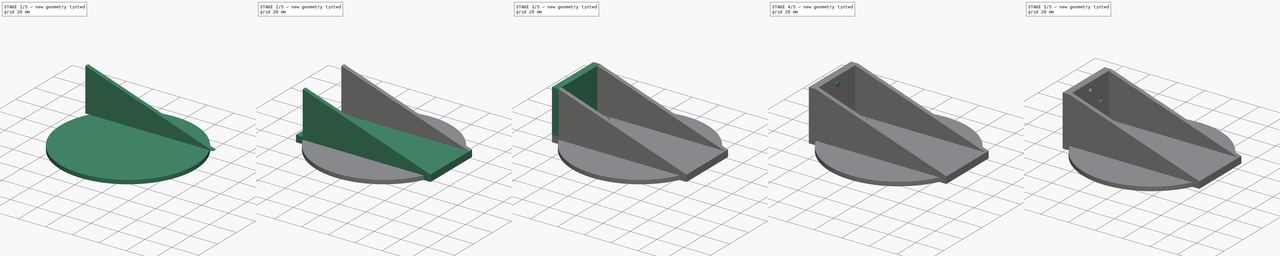
[diagram: build sequence overview — one tinted view per stage of 5, left to right]
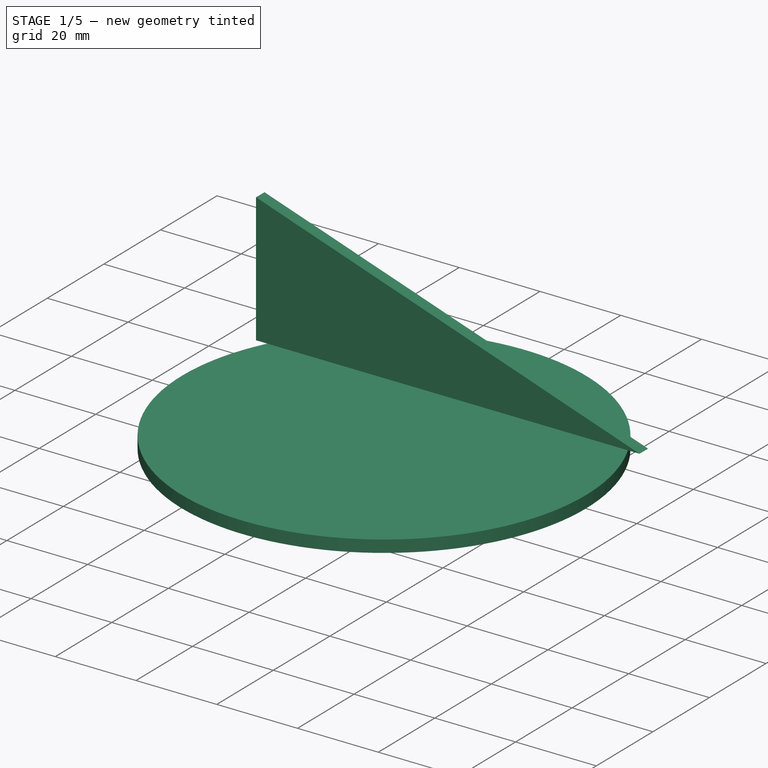
[diagram: stage 1 of 5 — iso view after this stage's code; geometry added in this stage tinted green]
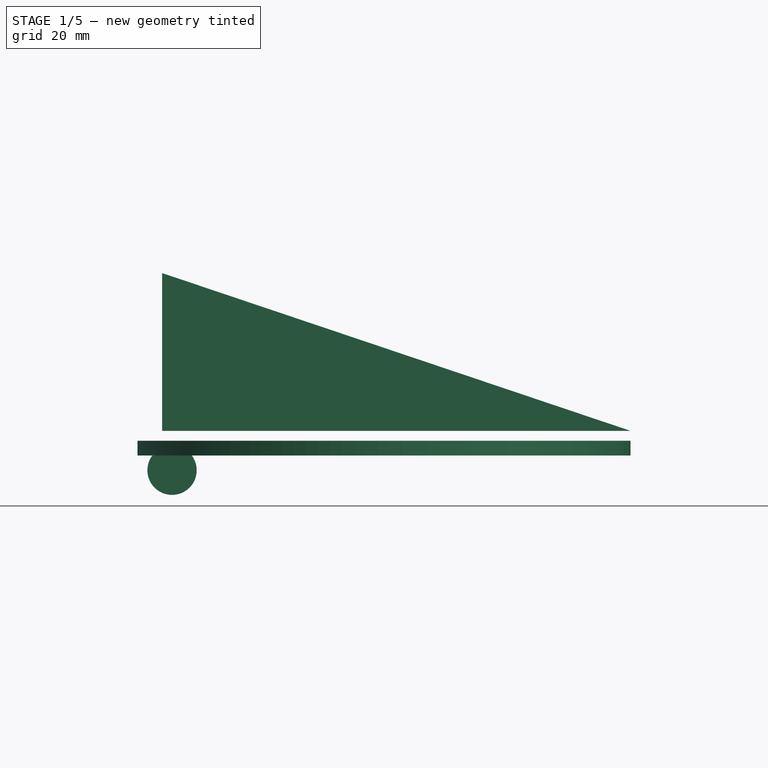
[diagram: stage 1 of 5 — front view after this stage's code; geometry added in this stage tinted green]
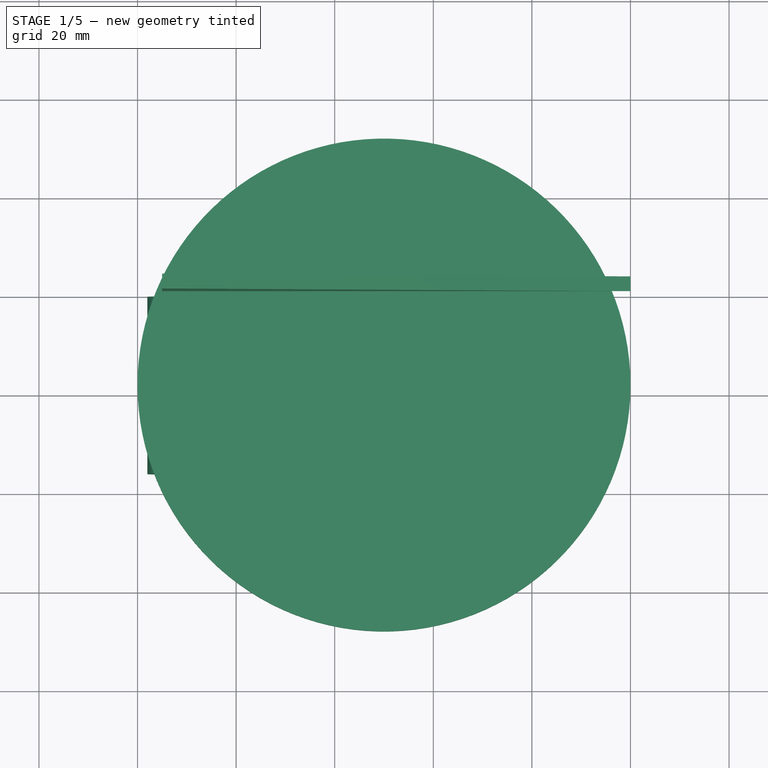
[diagram: stage 1 of 5 — top view after this stage's code; geometry added in this stage tinted green]
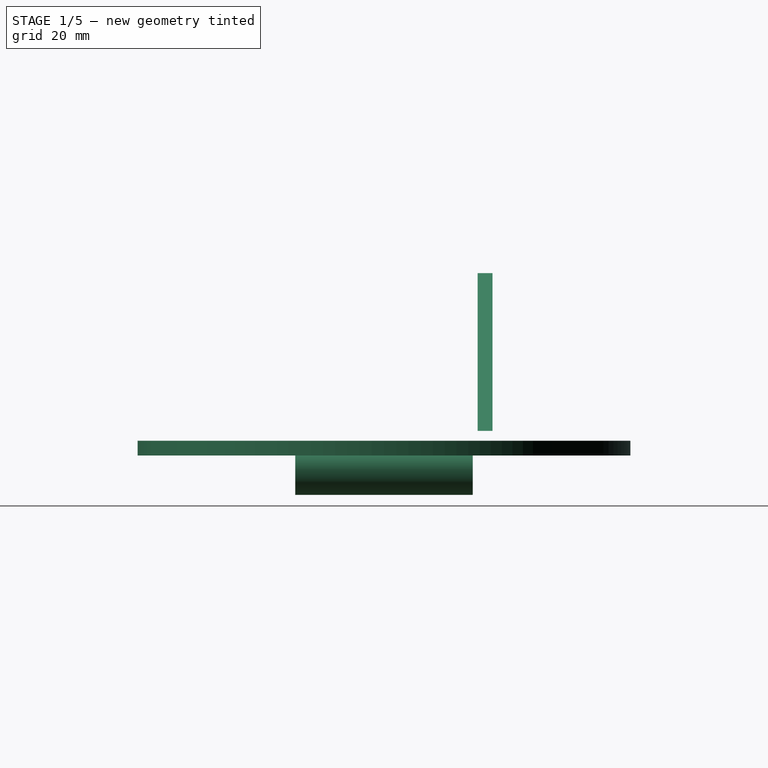
[diagram: stage 1 of 5 — right view after this stage's code; geometry added in this stage tinted green]
FCSTD DOCUMENT  (FreeCAD 0.15R4671 (Git))
Label: table_mount_top
License: All rights reserved
LicenseURL: http://en.wikipedia.org/wiki/All_rights_reserved
objects: Part::Cylinder×8, Part::Box×3, Part::MultiFuse×3, Sketcher::SketchObject×2, Part::Extrusion×2, Part::Cut×2
note: 20 computed .brp shape members not serialized (recipe doc carries the construction recipe); baked Part::Feature solids carry a one-line shape summary decoded from their .brp

FEATURE [Part::Box] Box002  label="Cube002"
  Height = 32
  Length = 5
  Placement = pos=(0,0,5) rot=(0,0,1;0rad)
  Width = 44
FEATURE [Sketcher::SketchObject] Sketch001
  ExternalGeometry = -> [Box002]
  Placement = pos=(0,0,5) rot=(1,0,0;1.5708rad)
  Support = -> Box002 [Face3]
  sketch-geometry (4):
    g0: GeomPoint [constr] X=100 Y=0 Z=0
    g1: LineSegment StartX=5 StartY=0 StartZ=0 EndX=5 EndY=32 EndZ=0
    g2: LineSegment StartX=5 StartY=32 StartZ=0 EndX=100 EndY=0 EndZ=0
    g3: LineSegment StartX=100 StartY=0 StartZ=0 EndX=5 EndY=0 EndZ=0
  constraints (8):
    c: DistanceX(g0) = 100
    c: DistanceY(g0) = 0
    c: Coincident(g1,g-4)
    c: Coincident(g1,g-3)
    c: Coincident(g2,g1)
    c: Coincident(g2,g0)
    c: Coincident(g3,g0)
    c: Coincident(g3,g1)
FEATURE [Part::Extrusion] Extrude001
  Base = -> Sketch001
  Dir = (0,3,0)
  Placement = pos=(0,41,0) rot=(0,0,1;0rad)
  Solid = true
FEATURE [Part::Cylinder] Cylinder008
  Angle = 360
  Height = 3
  Placement = pos=(50,22,0) rot=(0,0,1;0rad)
  Radius = 50
FEATURE [Part::Cylinder] Cylinder009
  Angle = 360
  Height = 36
  Placement = pos=(7,40,-3) rot=(1,0,0;1.5708rad)
  Radius = 5
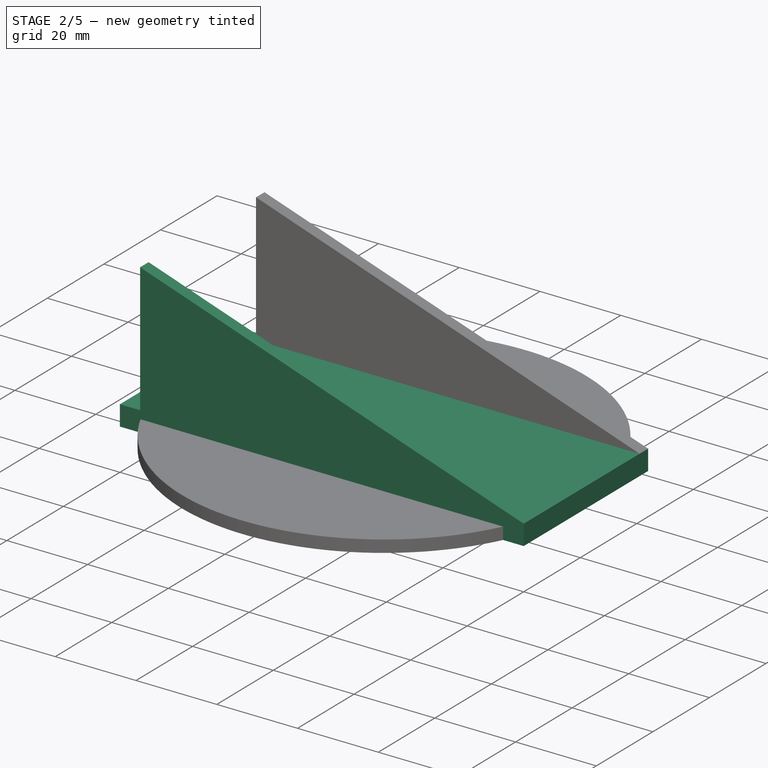
[diagram: stage 2 of 5 — iso view after this stage's code; geometry added in this stage tinted green]
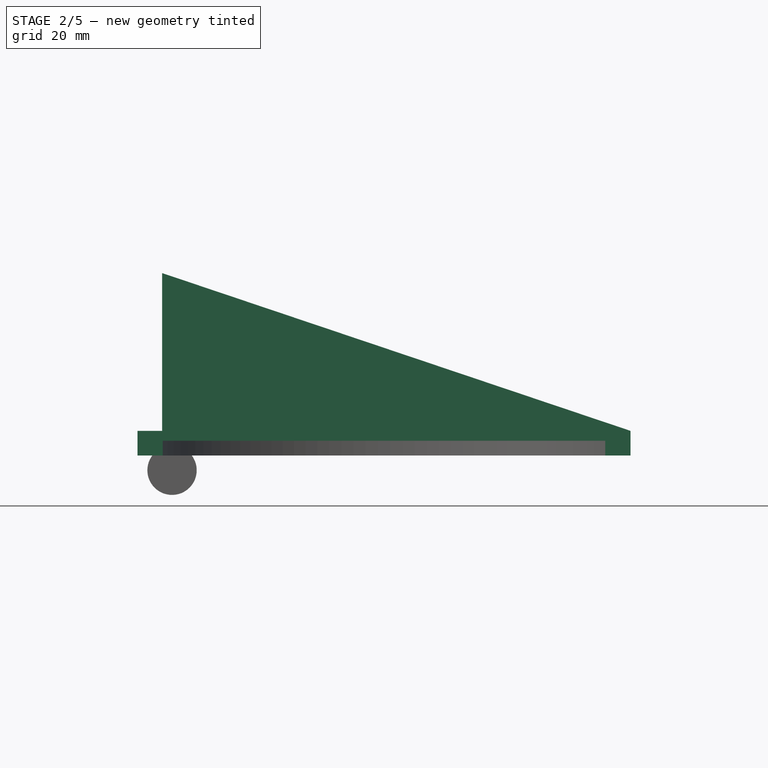
[diagram: stage 2 of 5 — front view after this stage's code; geometry added in this stage tinted green]
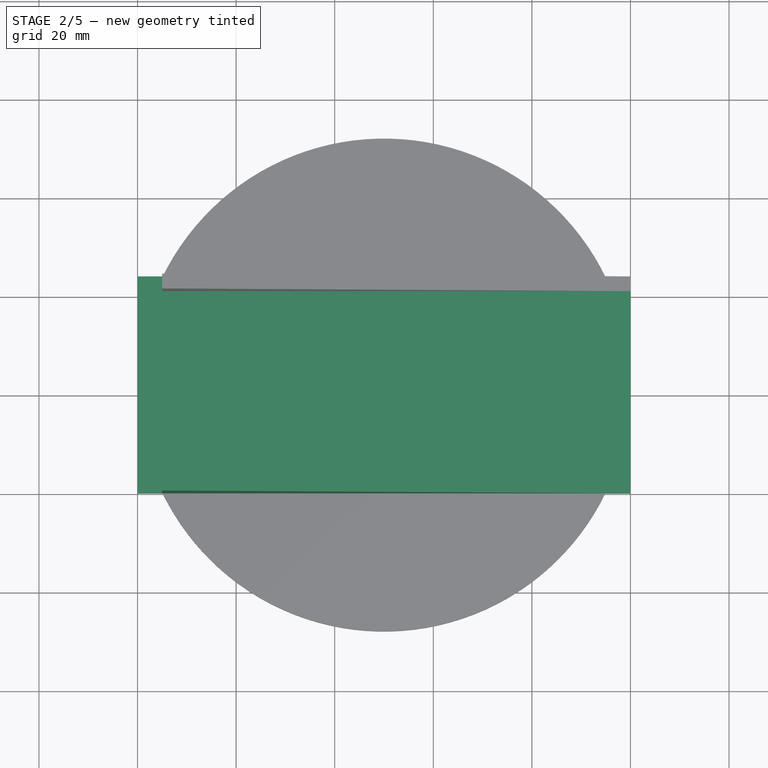
[diagram: stage 2 of 5 — top view after this stage's code; geometry added in this stage tinted green]
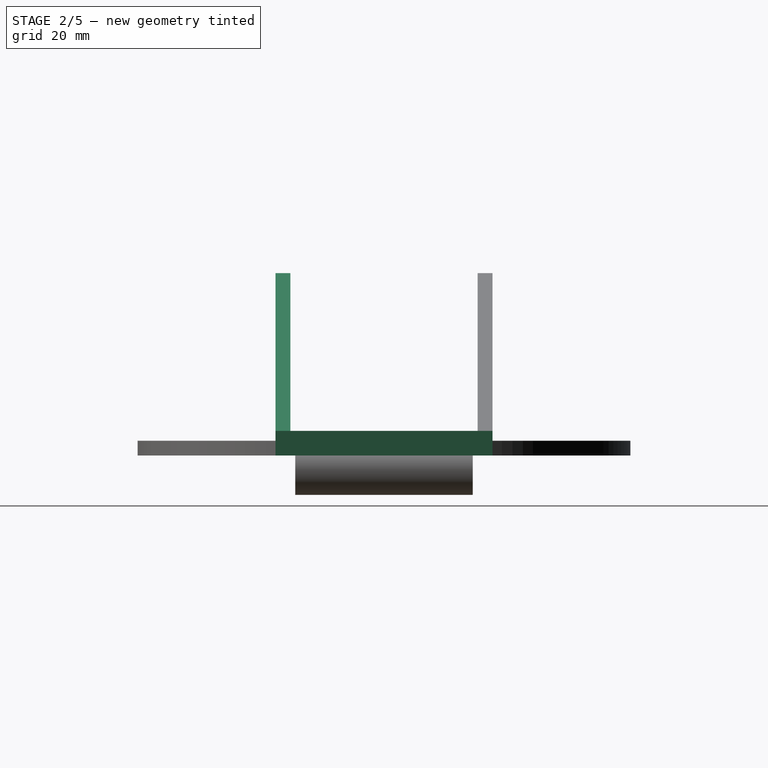
[diagram: stage 2 of 5 — right view after this stage's code; geometry added in this stage tinted green]
FEATURE [Part::Box] Box  label="Cube"
  Height = 32
  Length = 5
  Placement = pos=(0,0,5) rot=(0,0,1;0rad)
  Width = 44
FEATURE [Part::Box] Box001  label="Cube001"
  Height = 5
  Length = 100
  Width = 44
FEATURE [Sketcher::SketchObject] Sketch
  ExternalGeometry = -> [Box]
  Placement = pos=(0,0,5) rot=(1,0,0;1.5708rad)
  Support = -> Box [Face3]
  sketch-geometry (4):
    g0: GeomPoint [constr] X=100 Y=0 Z=0
    g1: LineSegment StartX=5 StartY=0 StartZ=0 EndX=5 EndY=32 EndZ=0
    g2: LineSegment StartX=5 StartY=32 StartZ=0 EndX=100 EndY=0 EndZ=0
    g3: LineSegment StartX=100 StartY=0 StartZ=0 EndX=5 EndY=0 EndZ=0
  constraints (8):
    c: DistanceX(g0) = 100
    c: DistanceY(g0) = 0
    c: Coincident(g1,g-4)
    c: Coincident(g1,g-3)
    c: Coincident(g2,g1)
    c: Coincident(g2,g0)
    c: Coincident(g3,g0)
    c: Coincident(g3,g1)
FEATURE [Part::Extrusion] Extrude
  Base = -> Sketch
  Dir = (0,3,0)
  Solid = true
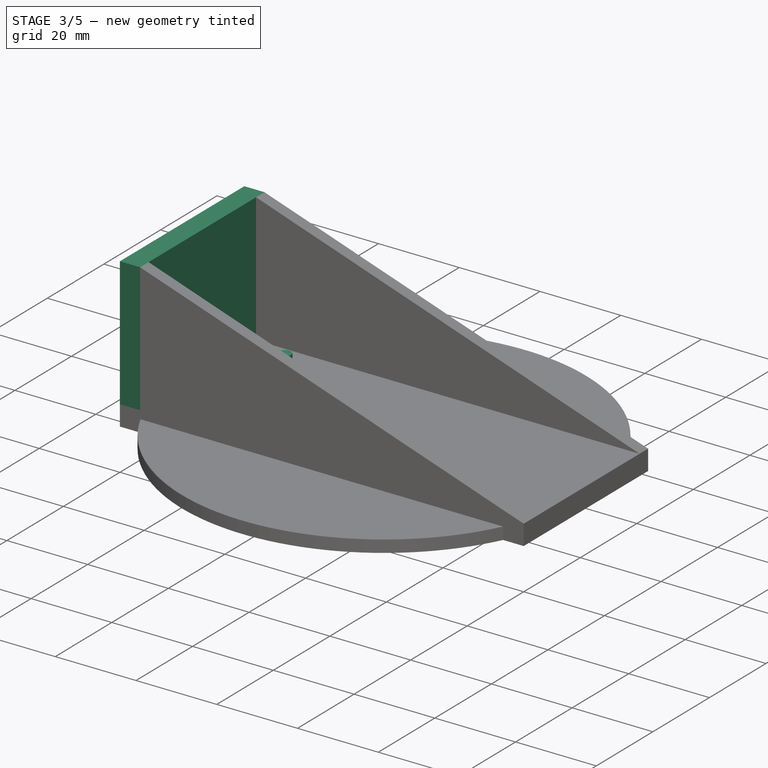
[diagram: stage 3 of 5 — iso view after this stage's code; geometry added in this stage tinted green]
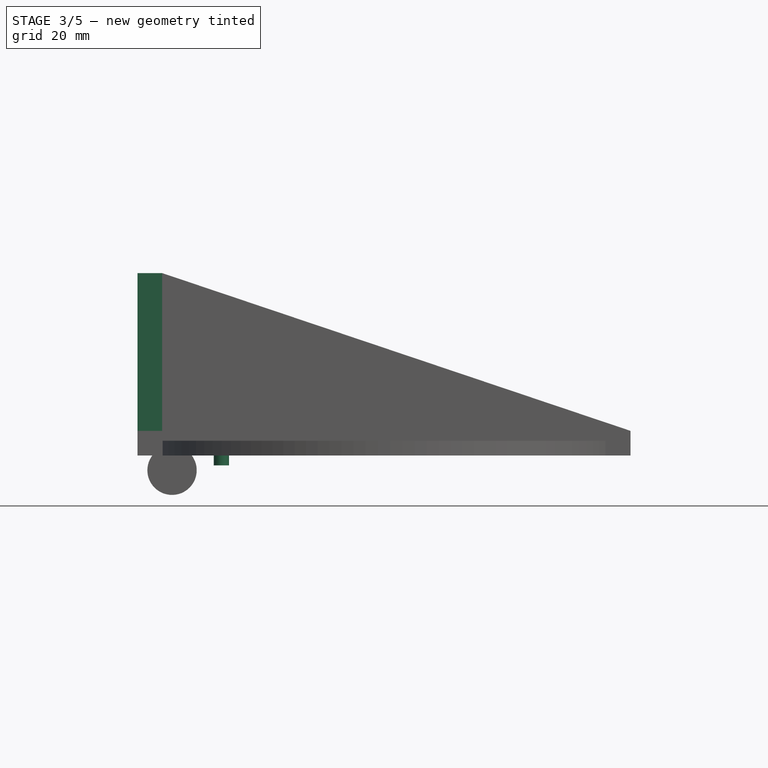
[diagram: stage 3 of 5 — front view after this stage's code; geometry added in this stage tinted green]
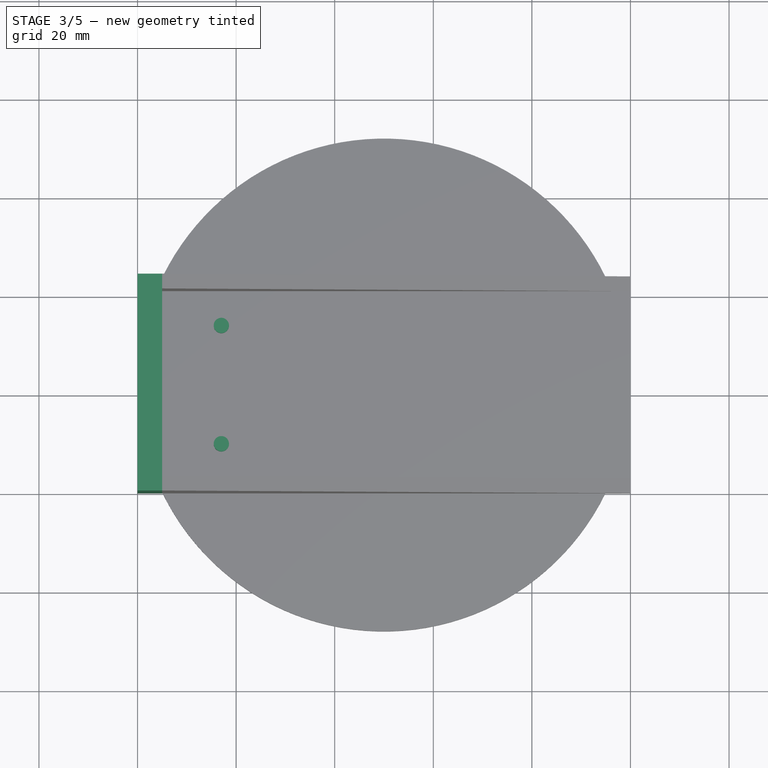
[diagram: stage 3 of 5 — top view after this stage's code; geometry added in this stage tinted green]
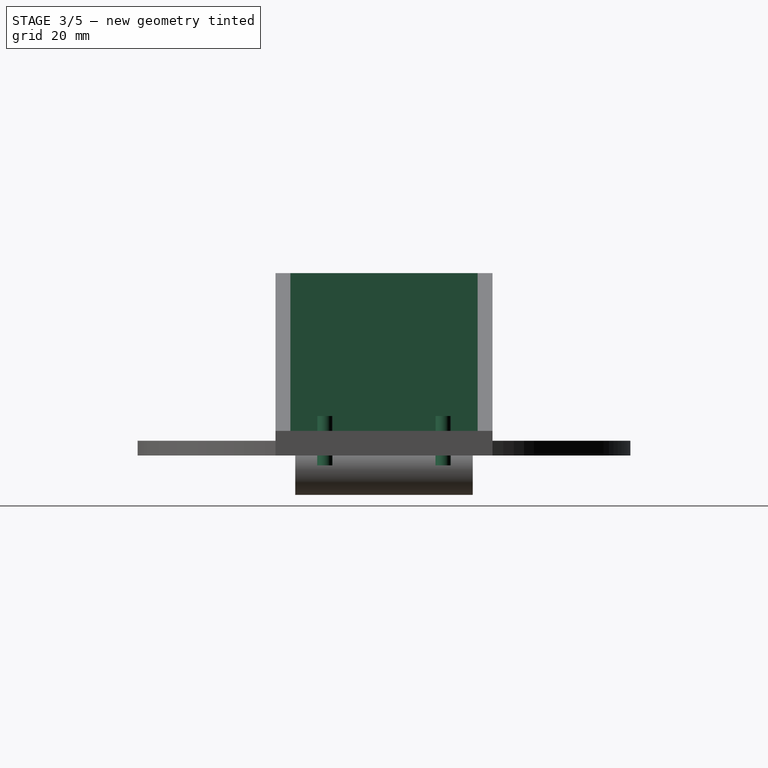
[diagram: stage 3 of 5 — right view after this stage's code; geometry added in this stage tinted green]
FEATURE [Part::Cylinder] Cylinder006
  Angle = 360
  Height = 10
  Placement = pos=(17,10,-2) rot=(0,0,1;0rad)
  Radius = 1.55
FEATURE [Part::Cylinder] Cylinder007
  Angle = 360
  Height = 10
  Placement = pos=(17,34,-2) rot=(0,0,1;0rad)
  Radius = 1.55
FEATURE [Part::MultiFuse] Fusion001
  Shapes = -> [Extrude001,Box002,Box,Extrude,Box001]
FEATURE [Part::MultiFuse] Fusion002
  Shapes = -> [Cylinder008,Fusion001]
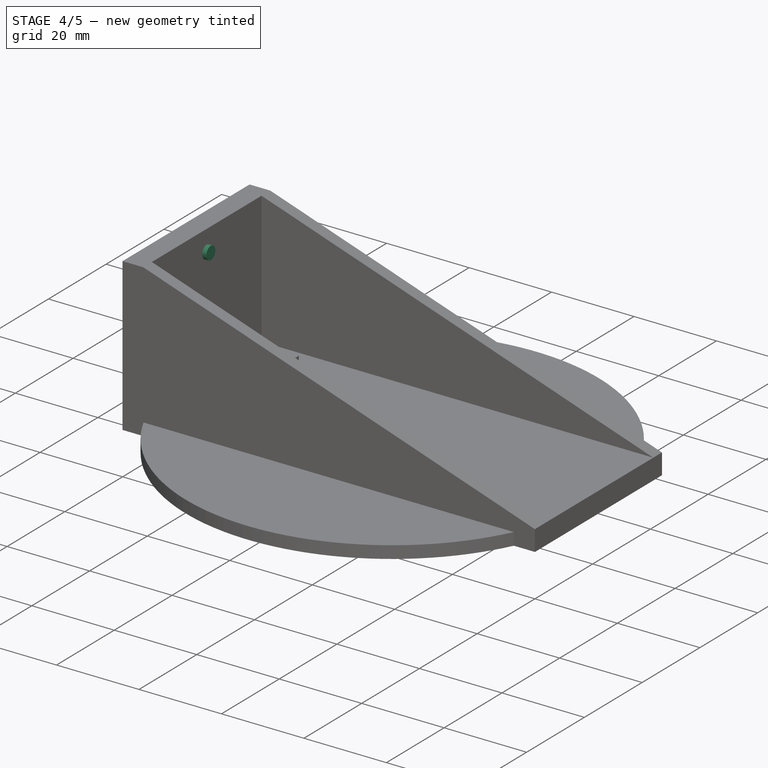
[diagram: stage 4 of 5 — iso view after this stage's code; geometry added in this stage tinted green]
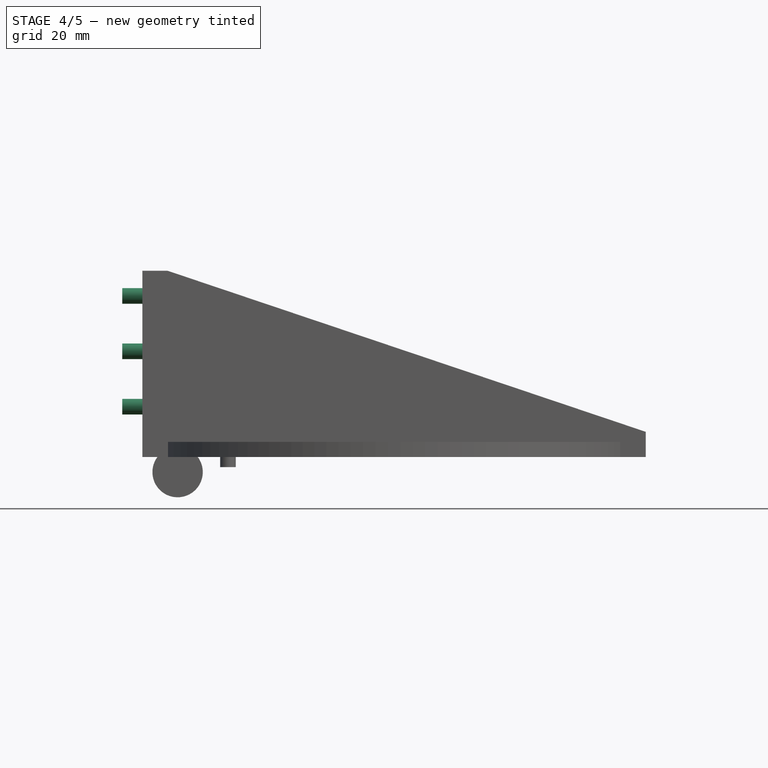
[diagram: stage 4 of 5 — front view after this stage's code; geometry added in this stage tinted green]
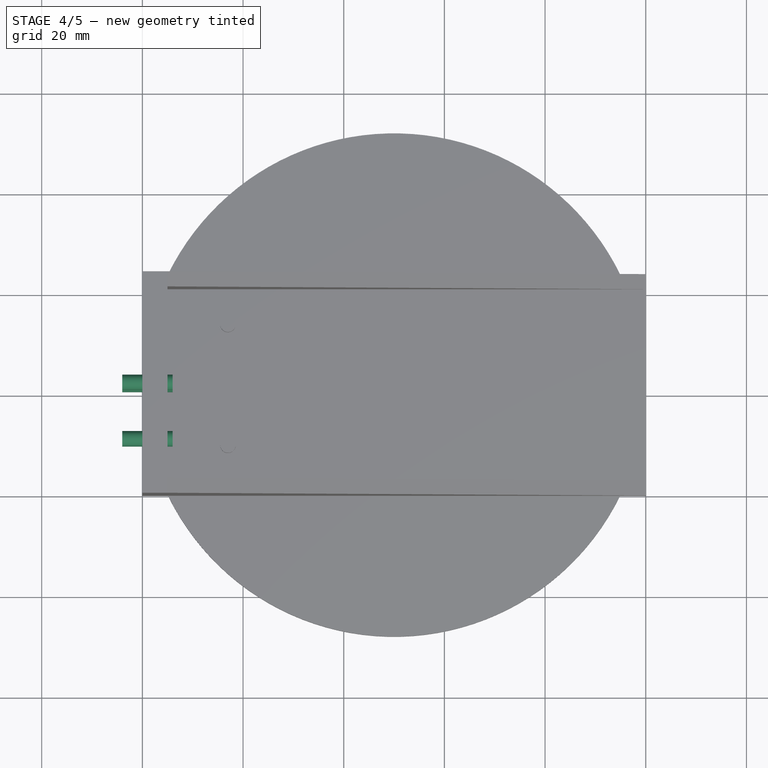
[diagram: stage 4 of 5 — top view after this stage's code; geometry added in this stage tinted green]
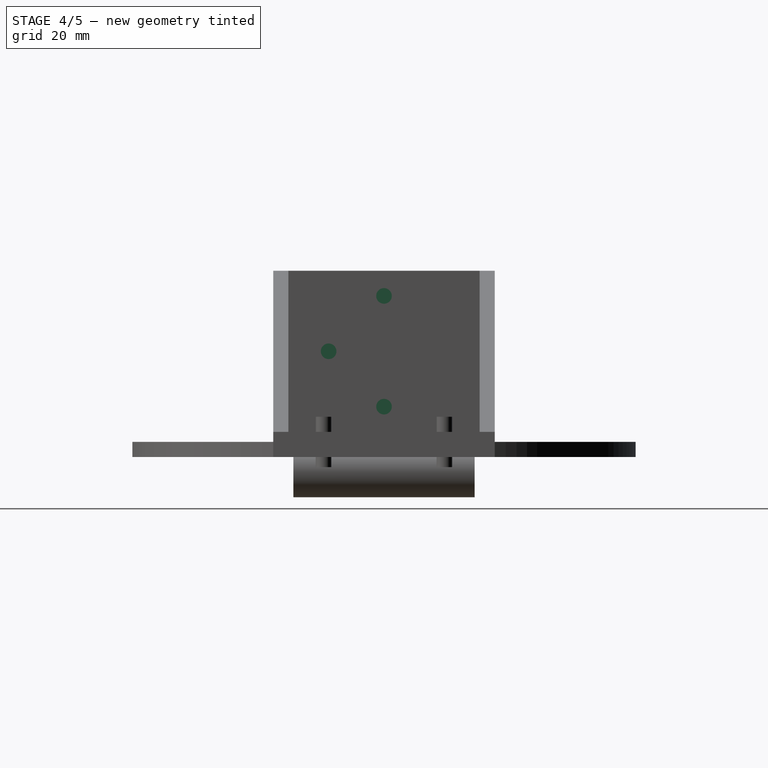
[diagram: stage 4 of 5 — right view after this stage's code; geometry added in this stage tinted green]
FEATURE [Part::Cylinder] Cylinder
  Angle = 360
  Height = 10
  Placement = pos=(-4,11,21) rot=(0,1,0;1.5708rad)
  Radius = 1.55
FEATURE [Part::Cylinder] Cylinder004
  Angle = 360
  Height = 10
  Placement = pos=(-4,22,32) rot=(0,1,0;1.5708rad)
  Radius = 1.55
FEATURE [Part::Cylinder] Cylinder005
  Angle = 360
  Height = 10
  Placement = pos=(-4,22,10) rot=(0,1,0;1.5708rad)
  Radius = 1.55
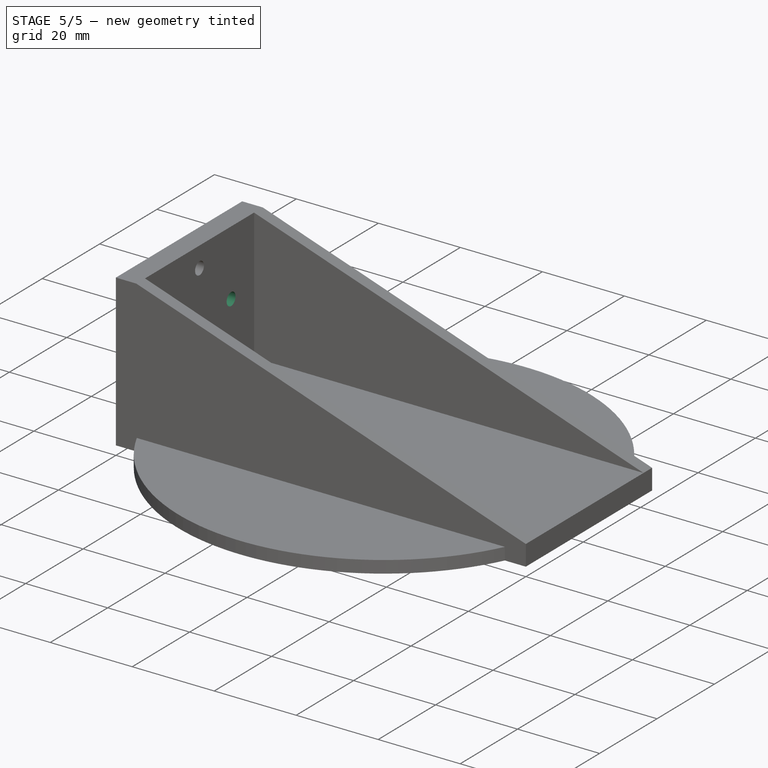
[diagram: stage 5 of 5 — iso view after this stage's code; geometry added in this stage tinted green]
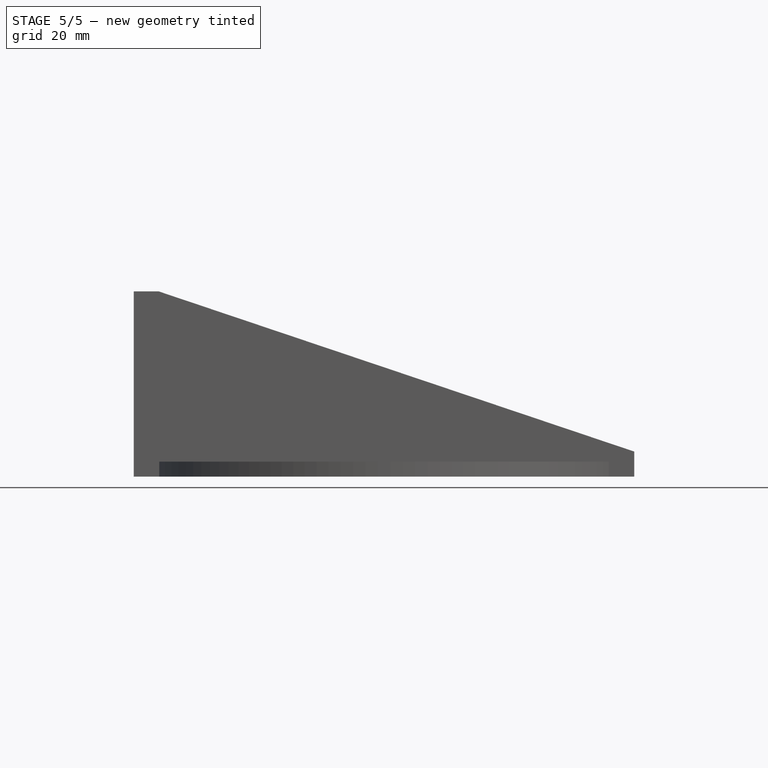
[diagram: stage 5 of 5 — front view after this stage's code; geometry added in this stage tinted green]
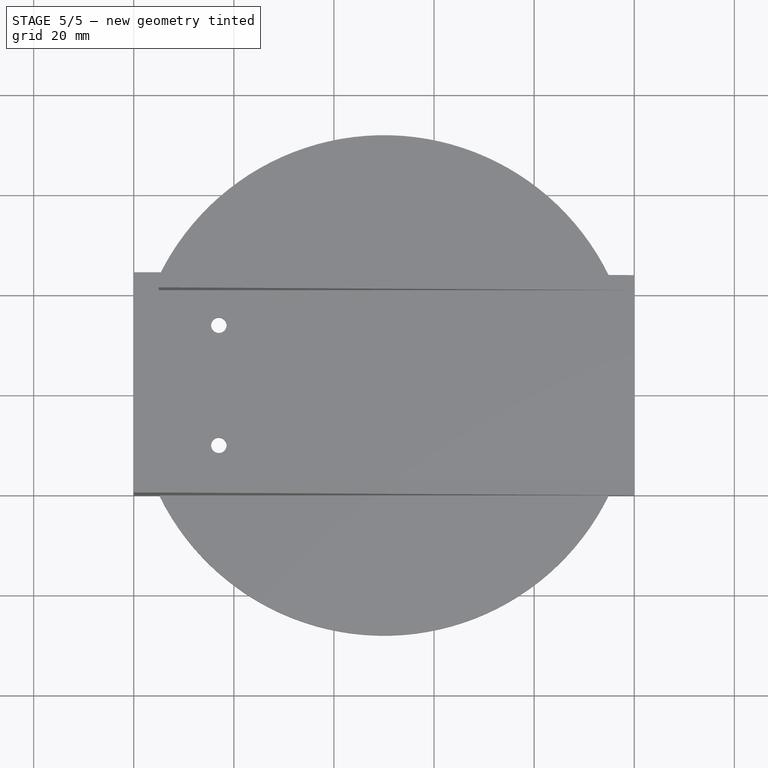
[diagram: stage 5 of 5 — top view after this stage's code; geometry added in this stage tinted green]
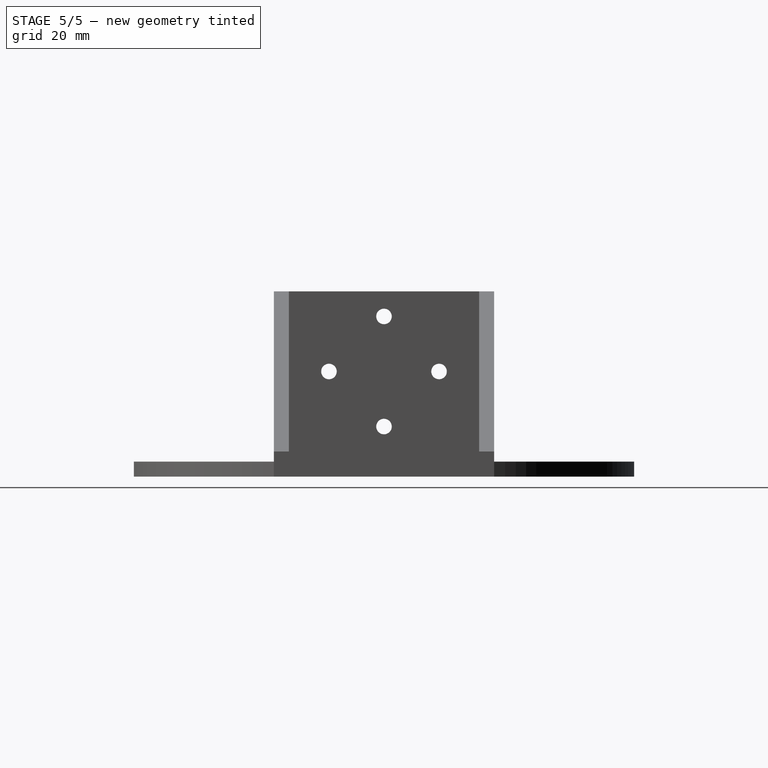
[diagram: stage 5 of 5 — right view after this stage's code; geometry added in this stage tinted green]
FEATURE [Part::Cylinder] Cylinder003
  Angle = 360
  Height = 10
  Placement = pos=(-4,33,21) rot=(0,1,0;1.5708rad)
  Radius = 1.55
FEATURE [Part::MultiFuse] Fusion
  Shapes = -> [Cylinder007,Cylinder,Cylinder004,Cylinder005,Cylinder003,Cylinder006]
FEATURE [Part::Cut] Cut
  Base = -> Fusion002
  Tool = -> Fusion
FEATURE [Part::Cut] Cut001
  Base = -> Cut
  Tool = -> Cylinder009
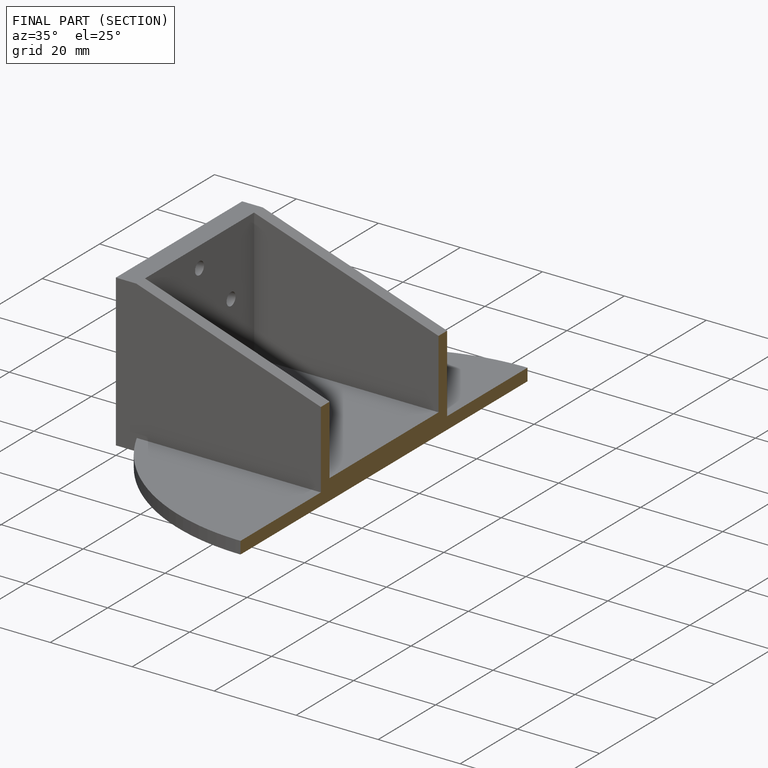
[diagram: finished part — half-section view (interior)]
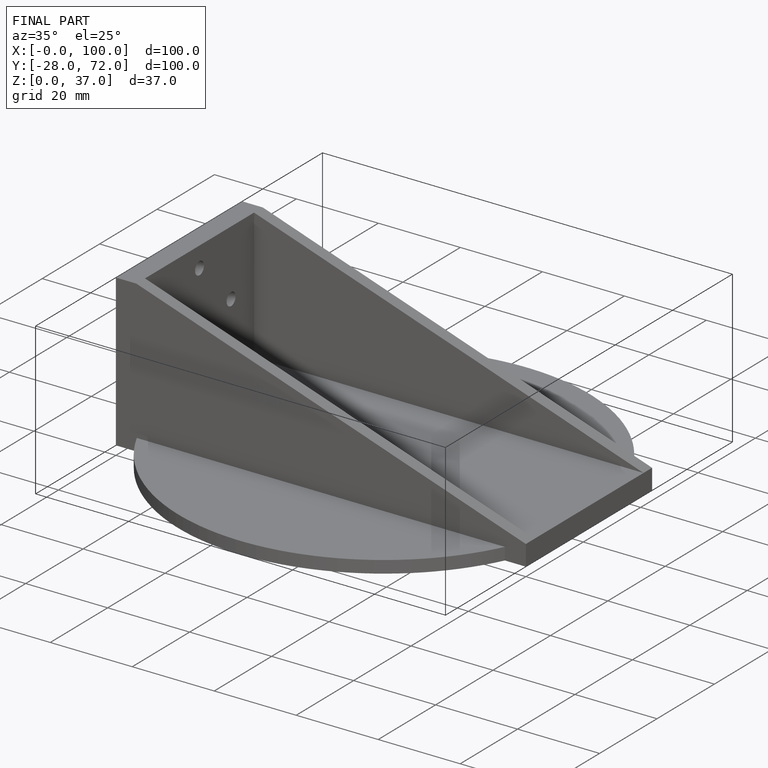
[diagram: finished part — iso view with bounding-box wireframe]
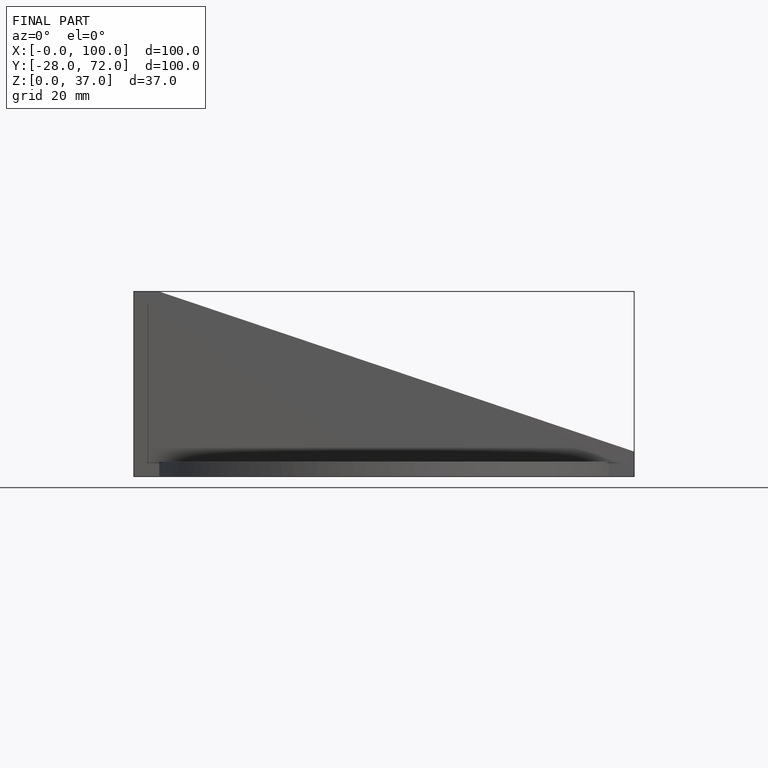
[diagram: finished part — front view with bounding-box wireframe]
